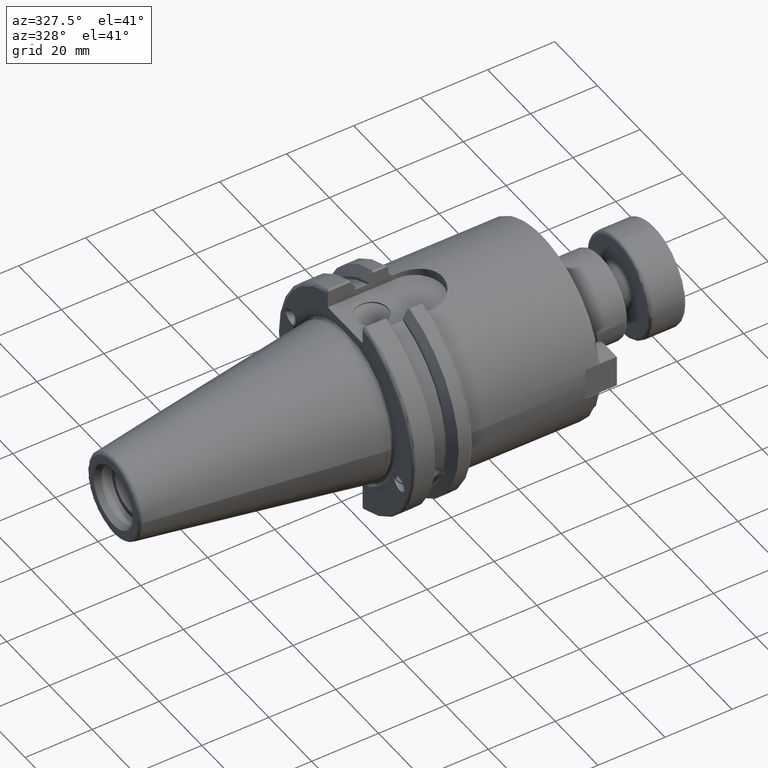
[diagram: clean part render]
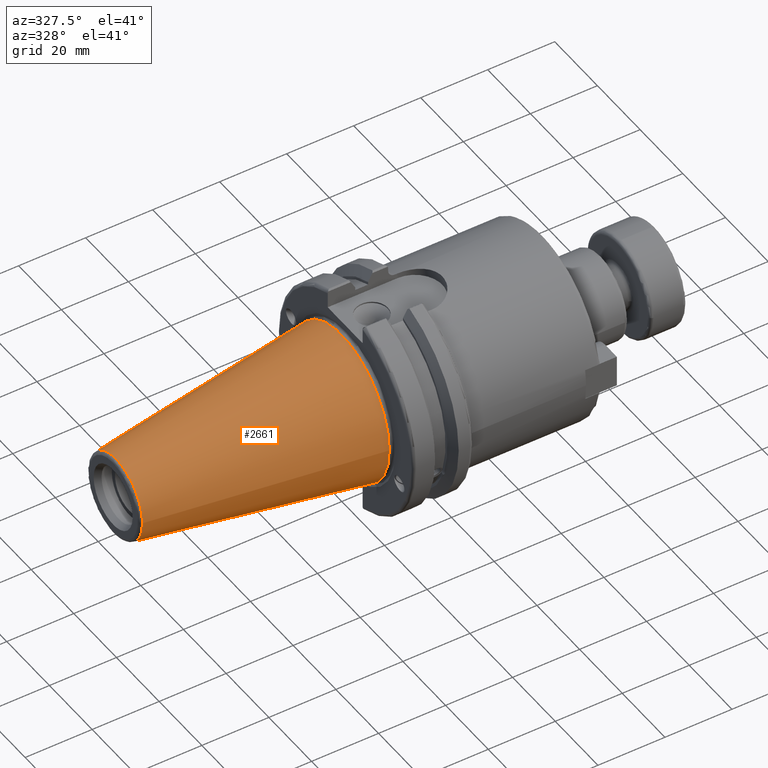
[diagram: same view with one face highlighted and labeled with its STEP entity id]
A machine part, auxiliary view. The second image highlights one B-rep face of the part: STEP entity #2661.
In plain terms, the highlighted conical surface has half-angle 8.297 deg.
Its self-contained STEP definition (entity closure, byte-faithful):
#124=CONICAL_SURFACE('',#3021,17.2484375,0.144812498238939);
#311=FACE_OUTER_BOUND('',#481,.T.);
#481=EDGE_LOOP('',(#2188,#2189,#2190,#2191,#2192));
#646=CIRCLE('',#3015,12.3966635780937);
#647=CIRCLE('',#3016,12.3966635780937);
#651=CIRCLE('',#3022,22.225);
#803=LINE('',#4940,#971);
#971=VECTOR('',#3628,17.2484375);
#1260=VERTEX_POINT('',#4927);
#1261=VERTEX_POINT('',#4928);
#1264=VERTEX_POINT('',#4938);
#1596=EDGE_CURVE('',#1260,#1261,#646,.T.);
#1597=EDGE_CURVE('',#1261,#1260,#647,.T.);
#1601=EDGE_CURVE('',#1264,#1264,#651,.T.);
#1602=EDGE_CURVE('',#1264,#1261,#803,.T.);
#2188=ORIENTED_EDGE('',*,*,#1601,.F.);
#2189=ORIENTED_EDGE('',*,*,#1602,.T.);
#2190=ORIENTED_EDGE('',*,*,#1596,.F.);
#2191=ORIENTED_EDGE('',*,*,#1597,.F.);
#2192=ORIENTED_EDGE('',*,*,#1602,.F.);
#2661=ADVANCED_FACE('',(#311),#124,.T.);
#3015=AXIS2_PLACEMENT_3D('',#4929,#3612,#3613);
#3016=AXIS2_PLACEMENT_3D('',#4930,#3614,#3615);
#3021=AXIS2_PLACEMENT_3D('',#4937,#3624,#3625);
#3022=AXIS2_PLACEMENT_3D('',#4939,#3626,#3627);
#3612=DIRECTION('center_axis',(-1.,0.,0.));
#3613=DIRECTION('ref_axis',(0.,-1.,3.06161699786838E-17));
#3614=DIRECTION('center_axis',(-1.,0.,0.));
#3615=DIRECTION('ref_axis',(0.,-1.,3.06161699786838E-17));
#3624=DIRECTION('center_axis',(1.,0.,0.));
#3625=DIRECTION('ref_axis',(0.,1.,0.));
#3626=DIRECTION('center_axis',(1.,0.,0.));
#3627=DIRECTION('ref_axis',(0.,0.,-1.));
#3628=DIRECTION('',(-0.989532981063282,0.144306893071729,1.76724974695192E-17));
#4927=CARTESIAN_POINT('',(-67.3943068930717,-1.5181534371019E-15,12.3966635780937));
#4928=CARTESIAN_POINT('',(-67.3943068930718,-12.3966635780937,-1.5181534371019E-15));
#4929=CARTESIAN_POINT('Origin',(-67.3943068930717,0.,-1.89769179637738E-15));
#4930=CARTESIAN_POINT('Origin',(-67.3943068930717,0.,-1.89769179637738E-15));
#4937=CARTESIAN_POINT('Origin',(-34.125,0.,0.));
#4938=CARTESIAN_POINT('',(0.,-22.225,-2.72177751110499E-15));
#4939=CARTESIAN_POINT('Origin',(0.,0.,0.));
#4940=CARTESIAN_POINT('',(-34.125,-17.2484375,-2.11232437746682E-15));